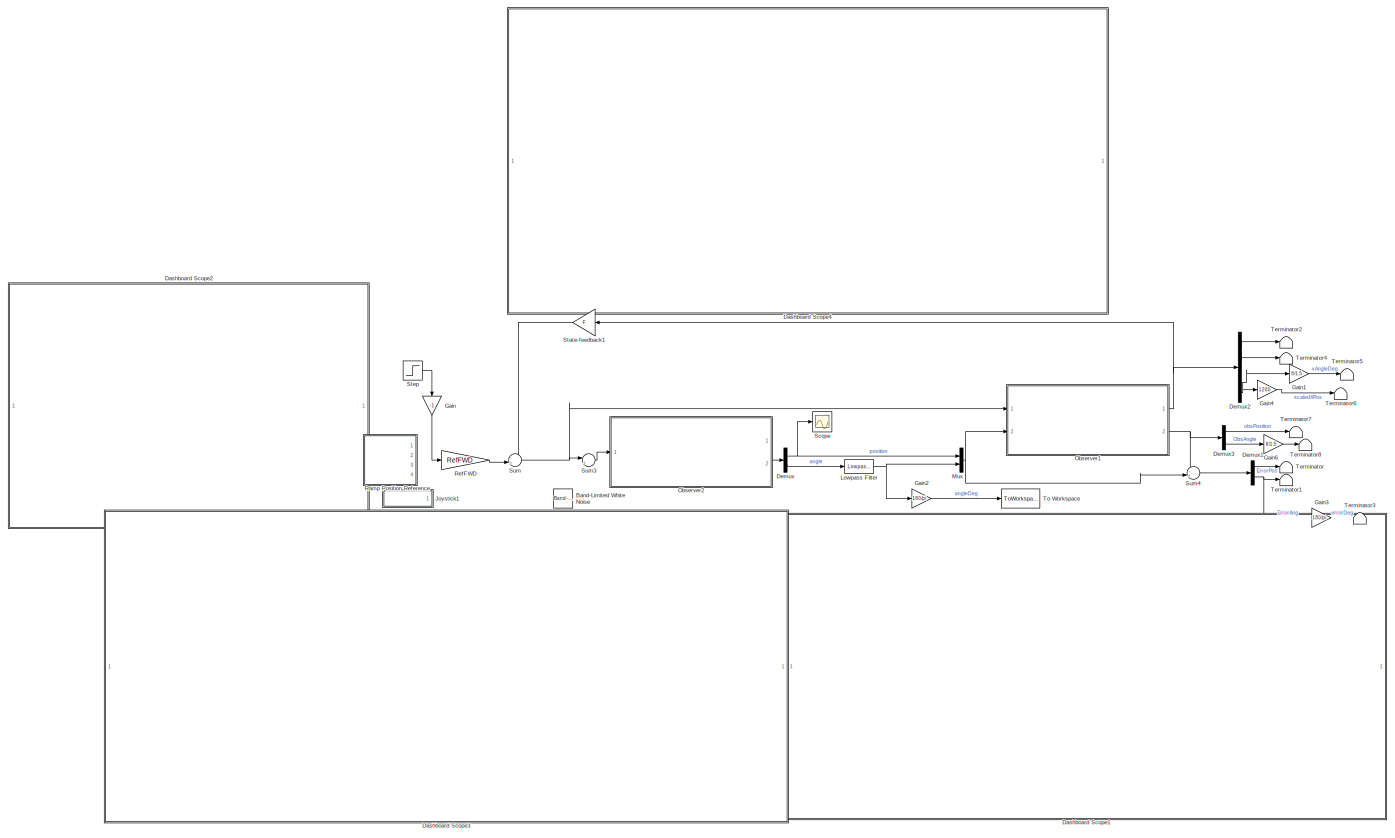
[diagram: root canvas - part 1/1, most of the canvas]
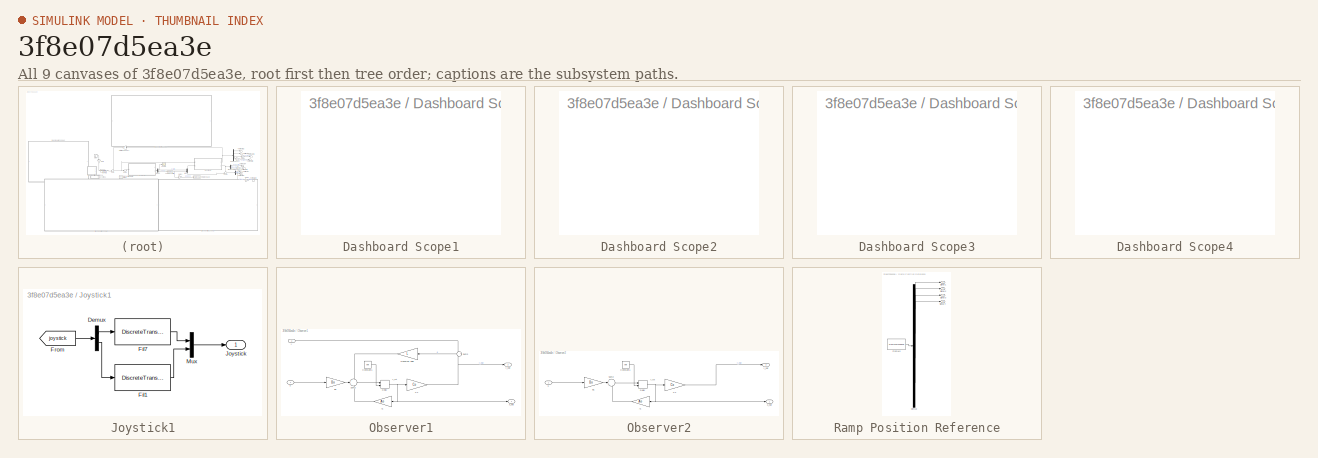
[diagram: thumbnail index - all 9 canvases of the model, root first then tree order]
MODEL slx_3f8e07d5ea3e
KIND model
CONFIG AbsTol = auto
CONFIG EnableMultiTasking = off
CONFIG FixedStep = auto
CONFIG MaxStep = auto
CONFIG MinStep = auto
CONFIG RelTol = 1e-3
CONFIG SampleTimeConstraint = Unconstrained
CONFIG Solver = VariableStepAuto
CONFIG SolverName = VariableStepAuto
CONFIG StartTime = 0.0
CONFIG StopTime = 30
BLOCK [Reference] Band-Limited White Noise  REF=simulink/Sources/Band-Limited
White Noise
  Ports = [0, 1]
  SourceBlock = simulink/Sources/Band-Limited\nWhite Noise
  SourceProductBaseCode = SL
  SourceProductName = Simulink
  SourceType = Band-Limited White Noise.
BLOCK [SubSystem] Dashboard Scope1
  DialogController = hmiCreateDDGDialog
  IsWebBlock = on
  MaskHideContents = on
  Ports = []
  RequestExecContextInheritance = off
BLOCK [SubSystem] Dashboard Scope2
  DialogController = hmiCreateDDGDialog
  IsWebBlock = on
  MaskHideContents = on
  Ports = []
  RequestExecContextInheritance = off
BLOCK [SubSystem] Dashboard Scope3
  DialogController = hmiCreateDDGDialog
  IsWebBlock = on
  MaskHideContents = on
  Ports = []
  RequestExecContextInheritance = off
BLOCK [SubSystem] Dashboard Scope4
  DialogController = hmiCreateDDGDialog
  IsWebBlock = on
  MaskHideContents = on
  Ports = []
  RequestExecContextInheritance = off
BLOCK [Demux] Demux
  DisplayOption = bar
  Outputs = 2
  Ports = [1, 2]
BLOCK [Demux] Demux1
  DisplayOption = bar
  Outputs = 2
  Ports = [1, 2]
BLOCK [Demux] Demux2
  DisplayOption = bar
  Outputs = 6
  Ports = [1, 6]
BLOCK [Demux] Demux3
  DisplayOption = bar
  Outputs = 2
  Ports = [1, 2]
BLOCK [Gain] Gain
  Commented = through
  Gain = -1
  OutDataTypeStr = Inherit: Inherit via internal rule
  ParamDataTypeStr = Inherit: Inherit via internal rule
  SaturateOnIntegerOverflow = off
BLOCK [Gain] Gain1
  Gain = 8/1.5
  OutDataTypeStr = Inherit: Inherit via internal rule
  ParamDataTypeStr = Inherit: Inherit via internal rule
  SaturateOnIntegerOverflow = off
BLOCK [Gain] Gain2
  Gain = 180/pi
  OutDataTypeStr = Inherit: Inherit via internal rule
  ParamDataTypeStr = Inherit: Inherit via internal rule
  SaturateOnIntegerOverflow = off
BLOCK [Gain] Gain3
  Gain = 180/pi
  OutDataTypeStr = Inherit: Inherit via internal rule
  ParamDataTypeStr = Inherit: Inherit via internal rule
  SaturateOnIntegerOverflow = off
BLOCK [Gain] Gain4
  Gain = 1200
  OutDataTypeStr = Inherit: Inherit via internal rule
  ParamDataTypeStr = Inherit: Inherit via internal rule
  SaturateOnIntegerOverflow = off
BLOCK [Gain] Gain6
  Gain = 8/1.5
  OutDataTypeStr = Inherit: Inherit via internal rule
  ParamDataTypeStr = Inherit: Inherit via internal rule
  SaturateOnIntegerOverflow = off
BLOCK [SubSystem] Joystick1
  Ports = [0, 1]
  RequestExecContextInheritance = off
BLOCK [Demux] Joystick1/Demux
  DisplayOption = bar
  Outputs = 2
  Ports = [1, 2]
BLOCK [DiscreteTransferFcn] Joystick1/Fil1
  Denominator = [1 -0.9691]
  InputPortMap = u0
  Numerator = [0.0155 0.0155]
  Ports = [1, 1]
  SampleTime = h
BLOCK [DiscreteTransferFcn] Joystick1/Fil7
  Denominator = [1 -0.9691]
  InputPortMap = u0
  Numerator = [0.0155 0.0155]
  Ports = [1, 1]
  SampleTime = h
BLOCK [From] Joystick1/From
  GotoTag = joystick
BLOCK [Outport] Joystick1/Joystick
  IconDisplay = Port number
BLOCK [Mux] Joystick1/Mux
  DisplayOption = bar
  Inputs = 2
  Ports = [2, 1]
BLOCK [Reference] Lowpass Filter  REF=dspfdesign/Lowpass Filter
  Commented = through
  Ports = [1, 1]
  SourceBlock = dspfdesign/Lowpass Filter
  SourceProductBaseCode = DS
  SourceProductName = DSP System Toolbox
  SourceType = dsp.LowpassFilter
BLOCK [Mux] Mux
  DisplayOption = bar
  Inputs = 2
  Ports = [2, 1]
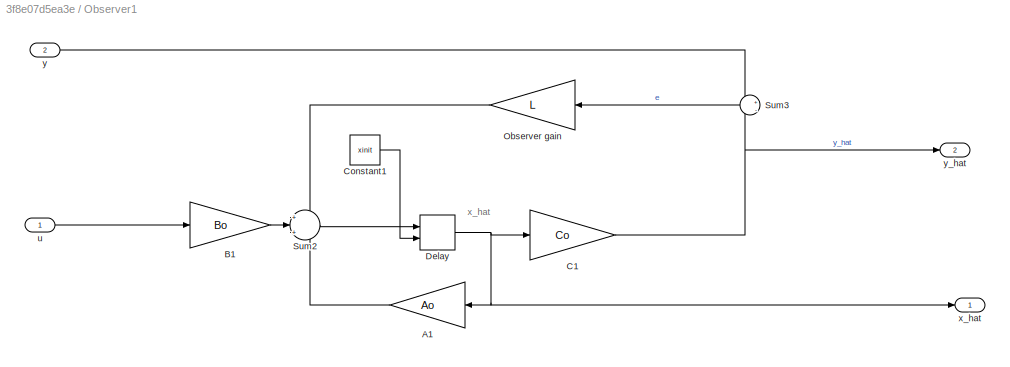
BLOCK [SubSystem] Observer1
  Ports = [2, 2]
  RequestExecContextInheritance = off
BLOCK [Gain] Observer1/A1
  Gain = Ao
  Multiplication = Matrix(K*u)
  OutDataTypeStr = Inherit: Inherit via internal rule
  ParamDataTypeStr = Inherit: Inherit via internal rule
  SaturateOnIntegerOverflow = off
BLOCK [Gain] Observer1/B1
  Gain = Bo
  Multiplication = Matrix(K*u)
  OutDataTypeStr = Inherit: Inherit via internal rule
  ParamDataTypeStr = Inherit: Inherit via internal rule
  SaturateOnIntegerOverflow = off
BLOCK [Gain] Observer1/C1
  Gain = Co
  Multiplication = Matrix(K*u)
  OutDataTypeStr = Inherit: Inherit via internal rule
  ParamDataTypeStr = Inherit: Inherit via internal rule
  SaturateOnIntegerOverflow = off
BLOCK [Constant] Observer1/Constant1
  Value = xinit
BLOCK [Delay] Observer1/Delay
  DelayLength = 1
  InitialConditionSource = Input port
  InputPortMap = u0,p4
  Ports = [2, 1]
BLOCK [Gain] Observer1/Observer gain
  Gain = L
  Multiplication = Matrix(K*u)
  OutDataTypeStr = Inherit: Inherit via internal rule
  ParamDataTypeStr = Inherit: Inherit via internal rule
  SaturateOnIntegerOverflow = off
BLOCK [Sum] Observer1/Sum2
  IconShape = round
  InputSameDT = off
  Inputs = +|+|+
  OutDataTypeStr = Inherit: Inherit via internal rule
  Ports = [3, 1]
  SaturateOnIntegerOverflow = off
BLOCK [Sum] Observer1/Sum3
  IconShape = round
  InputSameDT = off
  Inputs = +|-
  OutDataTypeStr = Inherit: Inherit via internal rule
  Ports = [2, 1]
  SaturateOnIntegerOverflow = off
BLOCK [Inport] Observer1/u
  IconDisplay = Port number
BLOCK [Outport] Observer1/x_hat
  IconDisplay = Port number
BLOCK [Inport] Observer1/y
  IconDisplay = Port number
  Port = 2
BLOCK [Outport] Observer1/y_hat
  IconDisplay = Port number
  Port = 2
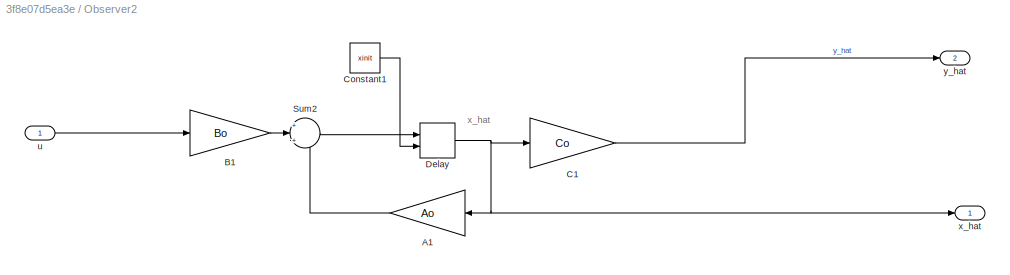
BLOCK [SubSystem] Observer2
  Ports = [1, 2]
  RequestExecContextInheritance = off
BLOCK [Gain] Observer2/A1
  Gain = Ao
  Multiplication = Matrix(K*u)
  OutDataTypeStr = Inherit: Inherit via internal rule
  ParamDataTypeStr = Inherit: Inherit via internal rule
  SaturateOnIntegerOverflow = off
BLOCK [Gain] Observer2/B1
  Gain = Bo
  Multiplication = Matrix(K*u)
  OutDataTypeStr = Inherit: Inherit via internal rule
  ParamDataTypeStr = Inherit: Inherit via internal rule
  SaturateOnIntegerOverflow = off
BLOCK [Gain] Observer2/C1
  Gain = Co
  Multiplication = Matrix(K*u)
  OutDataTypeStr = Inherit: Inherit via internal rule
  ParamDataTypeStr = Inherit: Inherit via internal rule
  SaturateOnIntegerOverflow = off
BLOCK [Constant] Observer2/Constant1
  Value = xinit
BLOCK [Delay] Observer2/Delay
  DelayLength = 1
  InitialConditionSource = Input port
  InputPortMap = u0,p4
  Ports = [2, 1]
BLOCK [Sum] Observer2/Sum2
  IconShape = round
  InputSameDT = off
  Inputs = +|+|+
  OutDataTypeStr = Inherit: Inherit via internal rule
  Ports = [3, 1]
  SaturateOnIntegerOverflow = off
BLOCK [Inport] Observer2/u
  IconDisplay = Port number
BLOCK [Outport] Observer2/x_hat
  IconDisplay = Port number
BLOCK [Outport] Observer2/y_hat
  IconDisplay = Port number
  Port = 2
BLOCK [SubSystem] Ramp Position Reference
  ClipboardFcn = sigbuilder_block('clipboard');
  CloseFcn = sigbuilder_block('close');
  ContinueFcn = sigbuilder_block('continue');
  CopyFcn = sigbuilder_block('copy');
  DeleteFcn = sigbuilder_block('delete');
  LoadFcn = sigbuilder_block('load');
  MaskHideContents = on
  ModelCloseFcn = sigbuilder_block('modelClose');
  NameChangeFcn = sigbuilder_block('namechange');
  OpenFcn = sigbuilder_block('open',[395.25 76.5 580.5 402.75 ]);
  PauseFcn = sigbuilder_block('pause');
  Ports = [0, 4]
  PreSaveFcn = sigbuilder_block('preSave');
  RequestExecContextInheritance = off
  StartFcn = sigbuilder_block('start');
  StopFcn = sigbuilder_block('stop');
  Tag = STV Subsys
BLOCK [Demux] Ramp Position Reference/Demux
  Ports = [1, 4]
  Tag = STV Demux
BLOCK [FromWorkspace] Ramp Position Reference/FromWs
  SampleTime = 0
  Tag = STV FromWs
  VariableName = tuvar
  ZeroCross = on
BLOCK [Outport] Ramp Position Reference/Signal 1
  IconDisplay = Port number
  Tag = STV Outport
BLOCK [Outport] Ramp Position Reference/Signal 2
  IconDisplay = Port number
  Port = 2
  Tag = STV Outport
BLOCK [Outport] Ramp Position Reference/Signal 3
  IconDisplay = Port number
  Port = 3
  Tag = STV Outport
BLOCK [Outport] Ramp Position Reference/Signal 4
  IconDisplay = Port number
  Port = 4
  Tag = STV Outport
BLOCK [Gain] RefFWD
  Gain = RefFWD
  OutDataTypeStr = Inherit: Inherit via internal rule
  ParamDataTypeStr = Inherit: Inherit via internal rule
  SaturateOnIntegerOverflow = off
BLOCK [Scope] Scope
  Floating = off
  NumInputPorts = 1
  Ports = [1]
  ScopeSpecificationString = C++SS(StrPVP('SaveName','ScopeData'),StrPVP('LimitDataPoints','on'),StrPVP('DataFormat','Array'),StrPVP('Decimation','1'),StrPVP('BlockParamSampleInput','off'))
BLOCK [Gain] State-feedback1
  Gain = F
  Multiplication = Matrix(K*u)
  OutDataTypeStr = Inherit: Inherit via internal rule
  ParamDataTypeStr = Inherit: Inherit via internal rule
  SaturateOnIntegerOverflow = off
BLOCK [Step] Step
  SampleTime = 0
  Time = 0
BLOCK [Sum] Sum
  IconShape = round
  InputSameDT = off
  Inputs = -+|
  OutDataTypeStr = Inherit: Inherit via internal rule
  Ports = [2, 1]
  SaturateOnIntegerOverflow = off
BLOCK [Sum] Sum3
  IconShape = round
  InputSameDT = off
  Inputs = |++
  OutDataTypeStr = Inherit: Inherit via internal rule
  Ports = [2, 1]
  SaturateOnIntegerOverflow = off
BLOCK [Sum] Sum4
  IconShape = round
  InputSameDT = off
  Inputs = -+|
  OutDataTypeStr = Inherit: Inherit via internal rule
  Ports = [2, 1]
  SaturateOnIntegerOverflow = off
BLOCK [Terminator] Terminator
BLOCK [Terminator] Terminator1
BLOCK [Terminator] Terminator2
BLOCK [Terminator] Terminator3
BLOCK [Terminator] Terminator4
BLOCK [Terminator] Terminator5
BLOCK [Terminator] Terminator6
BLOCK [Terminator] Terminator7
BLOCK [Terminator] Terminator8
BLOCK [ToWorkspace] To Workspace
  FixptAsFi = on
  MaxDataPoints = inf
  Ports = [1]
  SampleTime = -1
  Save2DSignal = 3-D array (concatenate along third dimension)
  SaveFormat = Timeseries
  VariableName = simout
ANNOTATION Observer1: x_hat
ANNOTATION Observer2: x_hat
LINE Demux1:1 -> Terminator:1
NET Demux1:2 -> Gain3:1, Terminator1:1
LINE Demux2:1 -> Terminator2:1
LINE Demux2:2 -> Terminator4:1
LINE Demux2:5 -> Gain1:1
LINE Demux2:6 -> Gain4:1
LINE Demux3:1 -> Terminator7:1
LINE Demux3:2 -> Gain6:1
NET Demux:1 -> Mux:1, Scope:1
LINE Demux:2 -> Lowpass Filter:1
LINE Gain1:1 -> Terminator5:1
LINE Gain2:1 -> To Workspace:1
LINE Gain3:1 -> Terminator3:1
LINE Gain4:1 -> Terminator6:1
LINE Gain6:1 -> Terminator8:1
LINE Gain:1 -> RefFWD:1
LINE Joystick1/Demux:1 -> Joystick1/Fil7:1
LINE Joystick1/Demux:2 -> Joystick1/Fil1:1
LINE Joystick1/Fil1:1 -> Joystick1/Mux:2
LINE Joystick1/Fil7:1 -> Joystick1/Mux:1
LINE Joystick1/From:1 -> Joystick1/Demux:1
LINE Joystick1/Mux:1 -> Joystick1/Joystick:1
NET Lowpass Filter:1 -> Gain2:1, Mux:2
NET Mux:1 -> Observer1:2, Sum4:2
LINE Observer1/A1:1 -> Observer1/Sum2:3
LINE Observer1/B1:1 -> Observer1/Sum2:2
NET Observer1/C1:1 -> Observer1/Sum3:2, Observer1/y_hat:1
LINE Observer1/Constant1:1 -> Observer1/Delay:2
NET Observer1/Delay:1 -> Observer1/A1:1, Observer1/C1:1, Observer1/x_hat:1
LINE Observer1/Observer gain:1 -> Observer1/Sum2:1
LINE Observer1/Sum2:1 -> Observer1/Delay:1
LINE Observer1/Sum3:1 -> Observer1/Observer gain:1
LINE Observer1/u:1 -> Observer1/B1:1
LINE Observer1/y:1 -> Observer1/Sum3:1
NET Observer1:1 -> Demux2:1, State-feedback1:1
NET Observer1:2 -> Demux3:1, Sum4:1
LINE Observer2/A1:1 -> Observer2/Sum2:3
LINE Observer2/B1:1 -> Observer2/Sum2:2
LINE Observer2/C1:1 -> Observer2/y_hat:1
LINE Observer2/Constant1:1 -> Observer2/Delay:2
NET Observer2/Delay:1 -> Observer2/A1:1, Observer2/C1:1, Observer2/x_hat:1
LINE Observer2/Sum2:1 -> Observer2/Delay:1
LINE Observer2/u:1 -> Observer2/B1:1
LINE Observer2:2 -> Demux:1
LINE RefFWD:1 -> Sum:2
LINE State-feedback1:1 -> Sum:1
LINE Step:1 -> Gain:1
LINE Sum3:1 -> Observer2:1
LINE Sum4:1 -> Demux1:1
NET Sum:1 -> Observer1:1, Sum3:1
note: NET lines group one-source signal fan-out (src -> all destinations, sorted); 1:1 wires keep LINE
